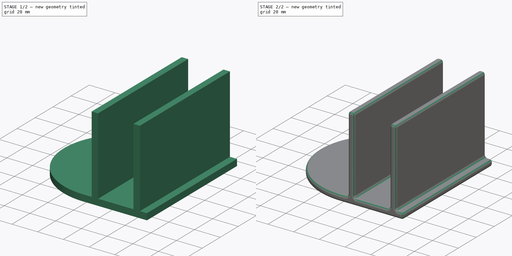
[diagram: build sequence overview — one tinted view per stage of 2, left to right]
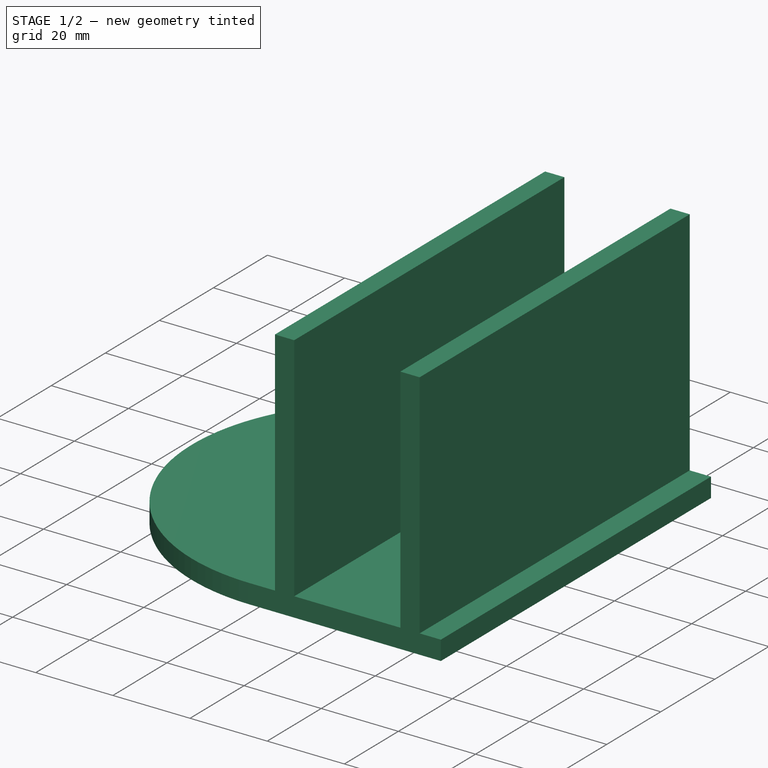
[diagram: stage 1 of 2 — iso view after this stage's code; geometry added in this stage tinted green]
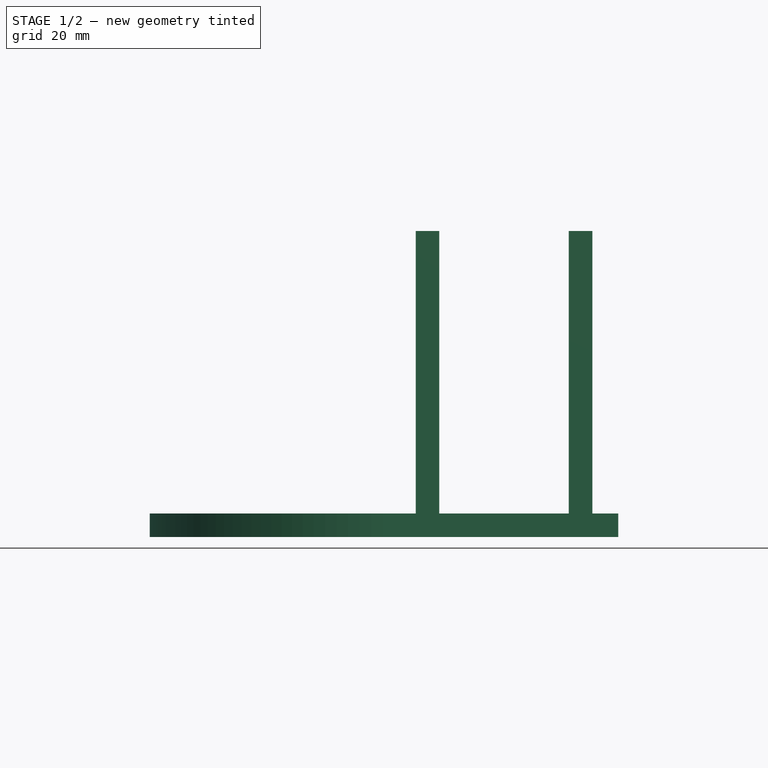
[diagram: stage 1 of 2 — front view after this stage's code; geometry added in this stage tinted green]
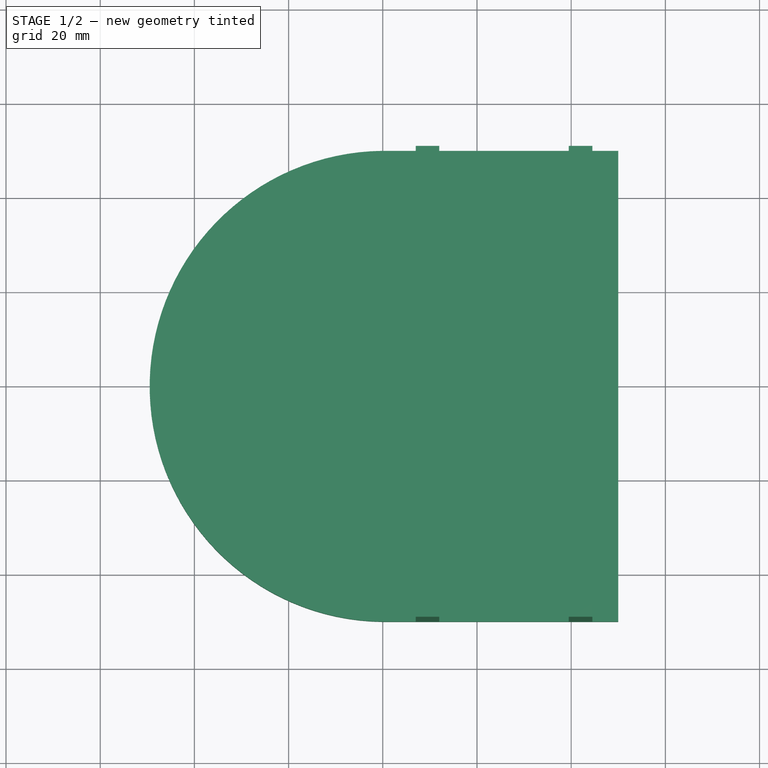
[diagram: stage 1 of 2 — top view after this stage's code; geometry added in this stage tinted green]
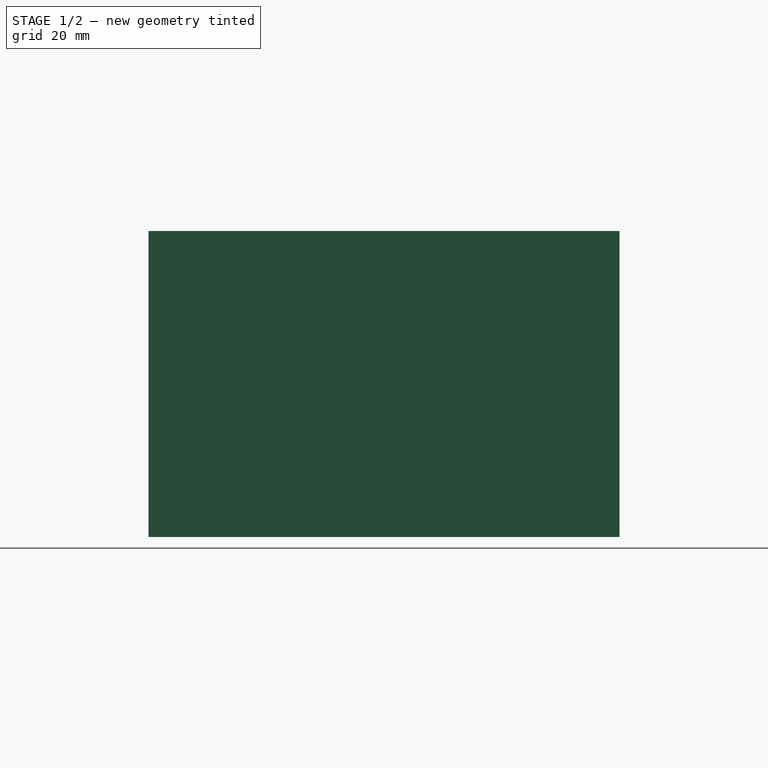
[diagram: stage 1 of 2 — right view after this stage's code; geometry added in this stage tinted green]
FCSTD DOCUMENT  (FreeCAD 1.0R39109 (Git))
Label: BedBottleShelf
License: All rights reserved
LicenseURL: https://en.wikipedia.org/wiki/All_rights_reserved
objects: Sketcher::SketchObject×2, PartDesign::Pad×2, PartDesign::Fillet×1, PartDesign::Body×1
note: 14 computed .brp shape members not serialized (recipe doc carries the construction recipe); baked Part::Feature solids carry a one-line shape summary decoded from their .brp

FEATURE [Sketcher::SketchObject] Sketch
  ArcFitTolerance = 1e-06
  AttachmentSupport = -> [XY_Plane]
  FullyConstrained = true
  MakeInternals = false
  MapMode = 5
  sketch-geometry (4):
    g0: LineSegment StartX=1.6e-15 StartY=49.9975 StartZ=0 EndX=50 EndY=49.9975 EndZ=0
    g1: LineSegment StartX=50 StartY=49.9975 StartZ=0 EndX=50 EndY=-49.9975 EndZ=0
    g2: LineSegment StartX=50 StartY=-49.9975 StartZ=0 EndX=1.42e-14 EndY=-49.9975 EndZ=0
    g3: ArcOfCircle CenterX=0.5 CenterY=0 CenterZ=0 NormalX=0 NormalY=0 NormalZ=1 AngleXU=0 Radius=50 StartAngle=1.5808 EndAngle=4.70239
  constraints (12):
    c: PointOnObject(g0,g-2)
    c: Horizontal(g0)
    c: Coincident(g0,g1)
    c: Vertical(g1)
    c: Coincident(g1,g2)
    c: PointOnObject(g2,g-2)
    c: Horizontal(g2)
    c: Symmetric(g-1,g-1,g3)
    c: Coincident(g3,g0)
    c: Coincident(g3,g2)
    c: Radius(g3) = 50
    c: DistanceX(g0,g0) = 50
FEATURE [PartDesign::Pad] Pad
  Direction = (0,0,1)
  Length = 5
  Length2 = 10
  Profile = -> Sketch
  ReferenceAxis = -> Sketch [N_Axis]
  Refine = true
  Suppressed = false
  Type = 0
FEATURE [Sketcher::SketchObject] Sketch001
  ArcFitTolerance = 1e-06
  AttachmentSupport = -> [Pad]
  ExternalGeometry = -> [Pad]
  FullyConstrained = true
  MakeInternals = false
  MapMode = 5
  Placement = pos=(0,0,5) rot=(0,0,1;0rad)
  sketch-geometry (10):
    g0: LineSegment StartX=7 StartY=49.9975 StartZ=0 EndX=7 EndY=-49.9975 EndZ=0
    g1: LineSegment StartX=7 StartY=-49.9975 StartZ=0 EndX=12 EndY=-49.9975 EndZ=0
    g2: LineSegment StartX=12 StartY=-49.9975 StartZ=0 EndX=12 EndY=49.9975 EndZ=0
    g3: LineSegment StartX=12 StartY=49.9975 StartZ=0 EndX=7 EndY=49.9975 EndZ=0
    g4: GeomPoint [constr] X=9.5 Y=0 Z=0
    g5: LineSegment StartX=39.5 StartY=49.9975 StartZ=0 EndX=39.5 EndY=-49.9975 EndZ=0
    g6: LineSegment StartX=39.5 StartY=-49.9975 StartZ=0 EndX=44.5 EndY=-49.9975 EndZ=0
    g7: LineSegment StartX=44.5 StartY=-49.9975 StartZ=0 EndX=44.5 EndY=49.9975 EndZ=0
    g8: LineSegment StartX=44.5 StartY=49.9975 StartZ=0 EndX=39.5 EndY=49.9975 EndZ=0
    g9: GeomPoint [constr] X=42 Y=0 Z=0
  constraints (26):
    c: Coincident(g0,g1)
    c: Coincident(g1,g2)
    c: Coincident(g2,g3)
    c: Coincident(g3,g0)
    c: Vertical(g0)
    c: Vertical(g2)
    c: Horizontal(g1)
    c: Horizontal(g3)
    c: Symmetric(g2,g0,g4)
    c: PointOnObject(g4,g-1)
    c: Coincident(g5,g6)
    c: Coincident(g6,g7)
    c: Coincident(g7,g8)
    c: Coincident(g8,g5)
    c: Vertical(g5)
    c: Vertical(g7)
    c: Horizontal(g6)
    c: Horizontal(g8)
    c: Symmetric(g7,g5,g9)
    c: PointOnObject(g9,g-1)
    c: Distance(g8,g8) = 5
    c: Distance(g3,g3) = 5
    c: PointOnObject(g5,g-5)
    c: PointOnObject(g0,g-5)
    c: Distance(g5,g2) = 27.5
    c: Distance(g0,g-2) = 7
FEATURE [PartDesign::Pad] Pad001
  BaseFeature = -> Pad
  Direction = (0,0,1)
  Length = 60
  Length2 = 10
  Profile = -> Sketch001
  ReferenceAxis = -> Sketch001 [N_Axis]
  Refine = true
  Suppressed = false
  Type = 0
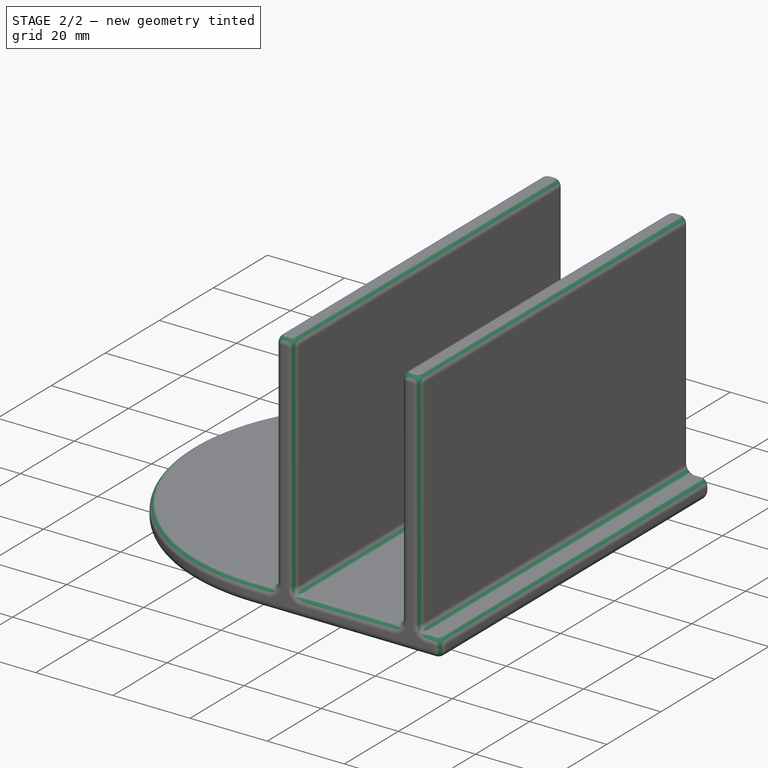
[diagram: stage 2 of 2 — iso view after this stage's code; geometry added in this stage tinted green]
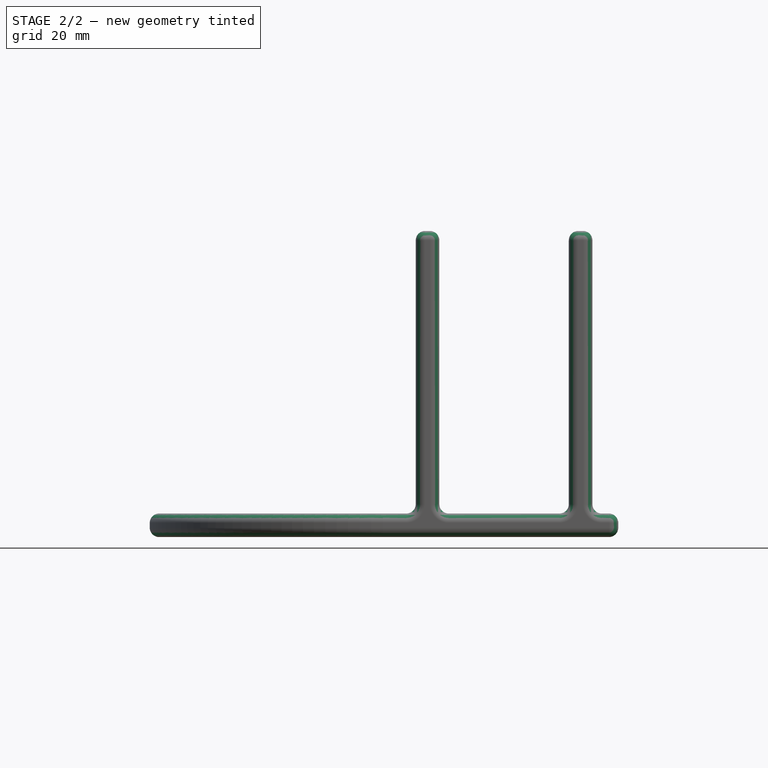
[diagram: stage 2 of 2 — front view after this stage's code; geometry added in this stage tinted green]
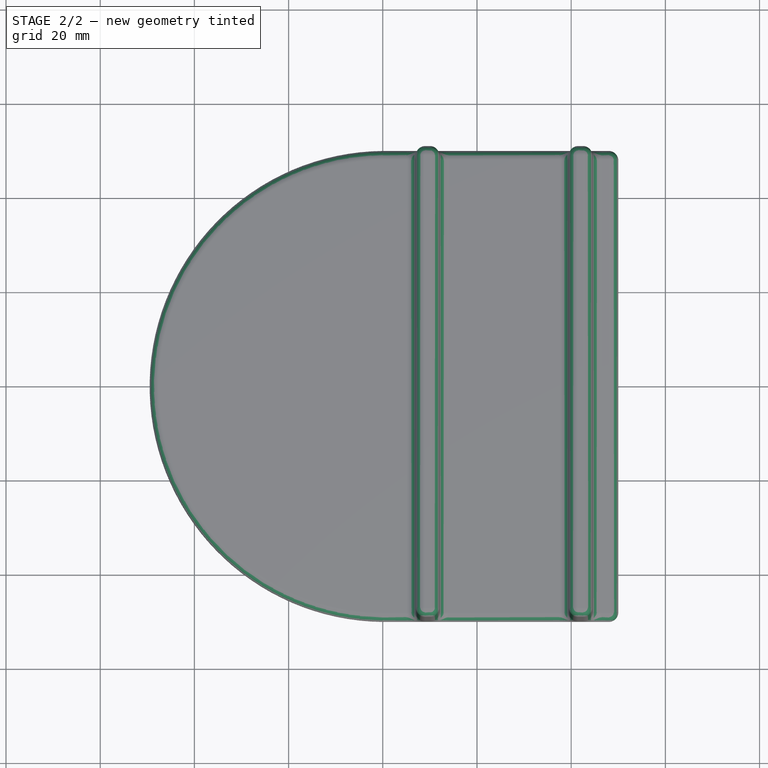
[diagram: stage 2 of 2 — top view after this stage's code; geometry added in this stage tinted green]
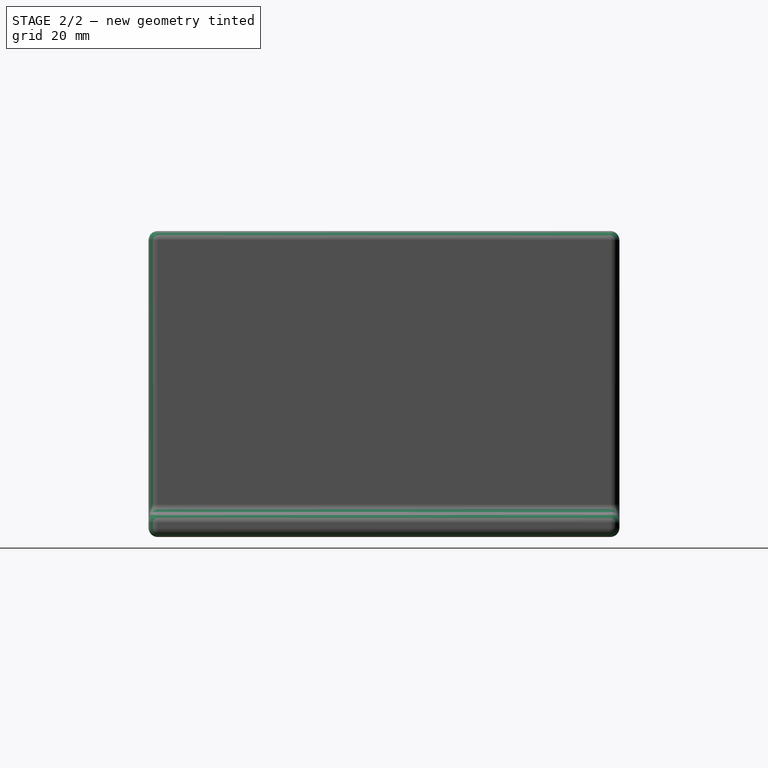
[diagram: stage 2 of 2 — right view after this stage's code; geometry added in this stage tinted green]
FEATURE [PartDesign::Fillet] Fillet
  Base = -> Pad001
  BaseFeature = -> Pad001
  Radius = 2
  Refine = true
  SupportTransform = false
  Suppressed = false
  UseAllEdges = true
FEATURE [PartDesign::Body] Body
  AllowCompound = false
  Group = -> [Sketch,Pad,Sketch001,Pad001,Fillet]
  Origin = -> Origin
  Tip = -> Fillet
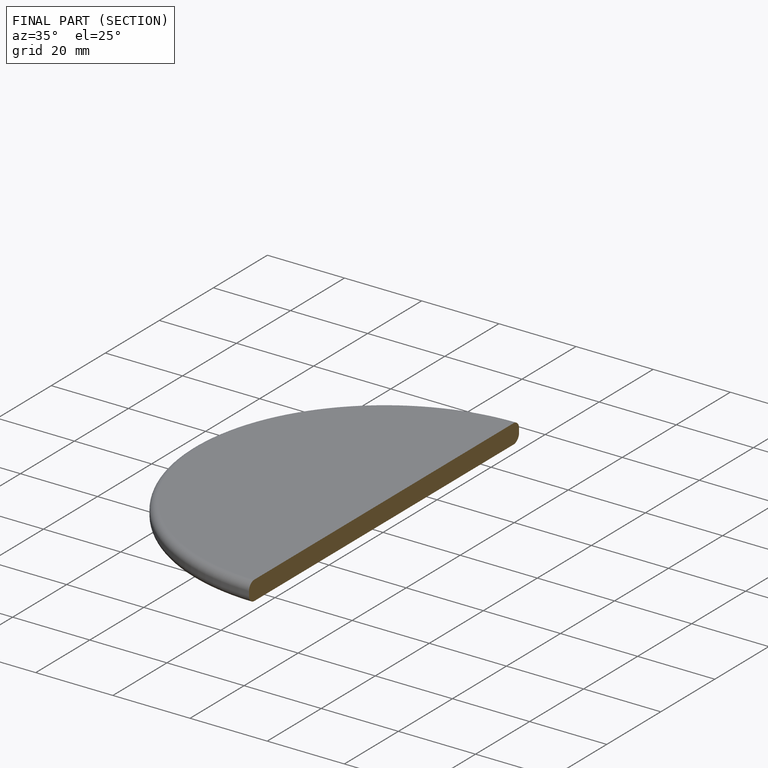
[diagram: finished part — half-section view (interior)]
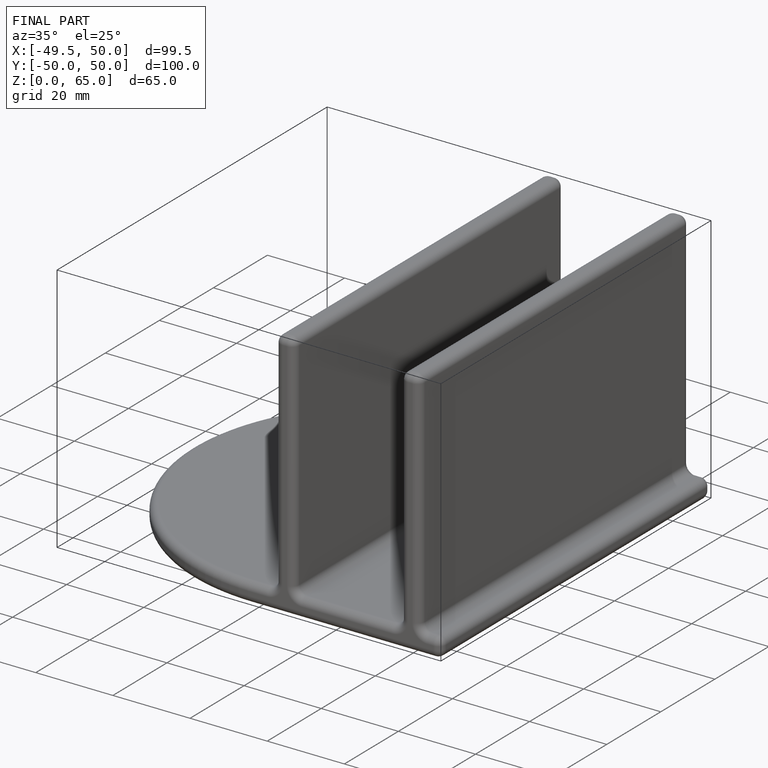
[diagram: finished part — iso view with bounding-box wireframe]
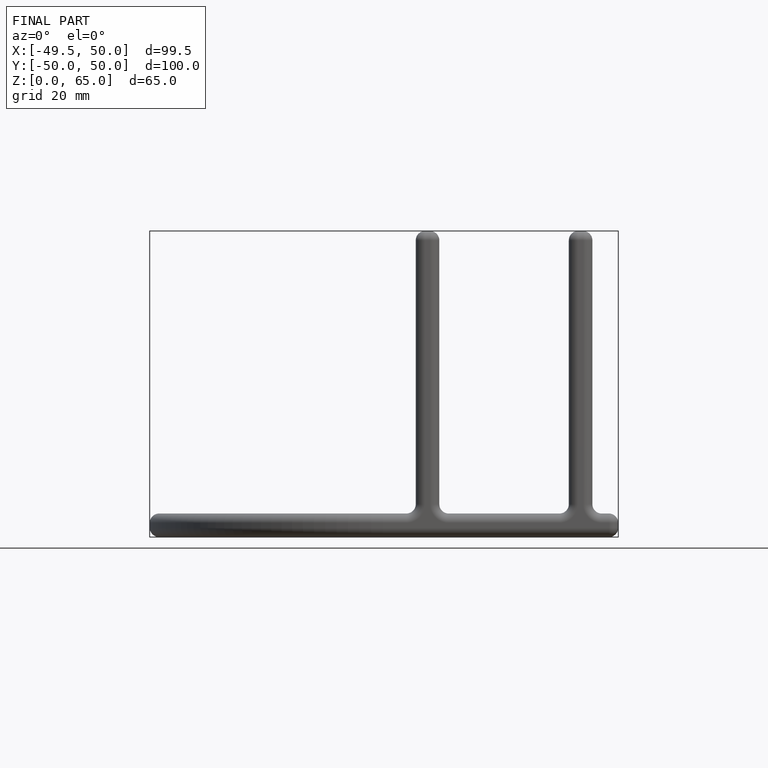
[diagram: finished part — front view with bounding-box wireframe]
